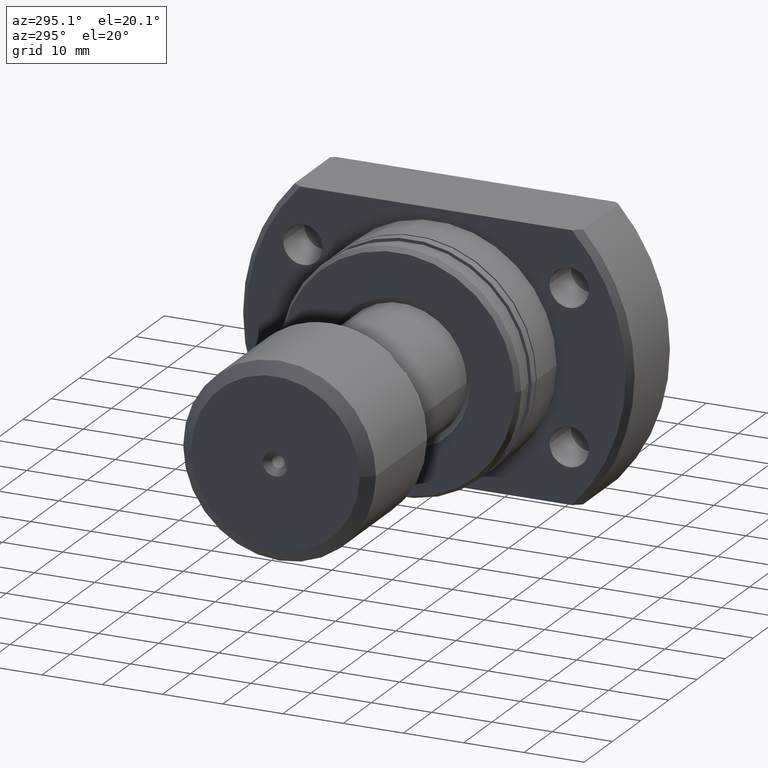
[diagram: clean part render]
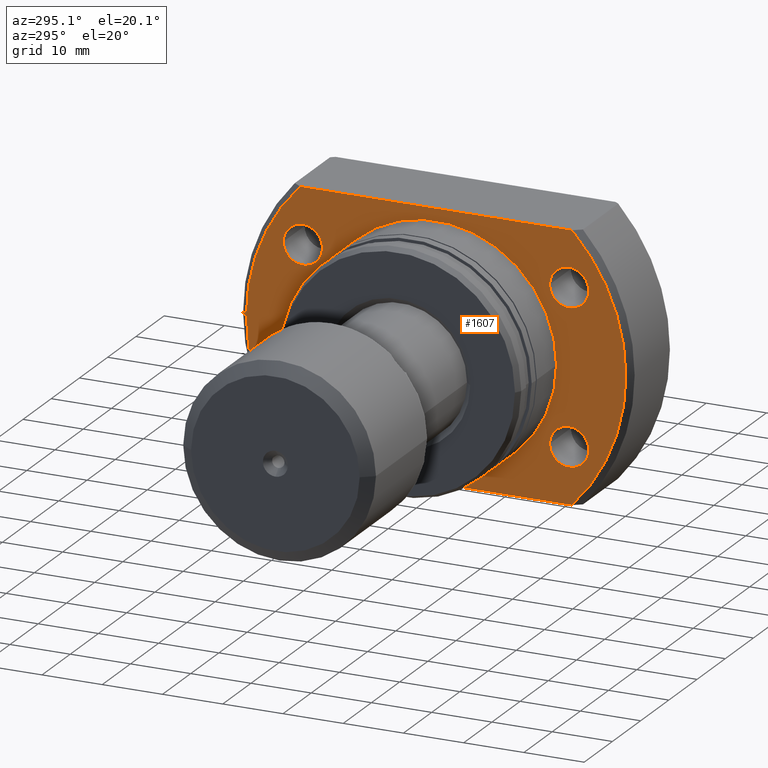
[diagram: same view with one face highlighted and labeled with its STEP entity id]
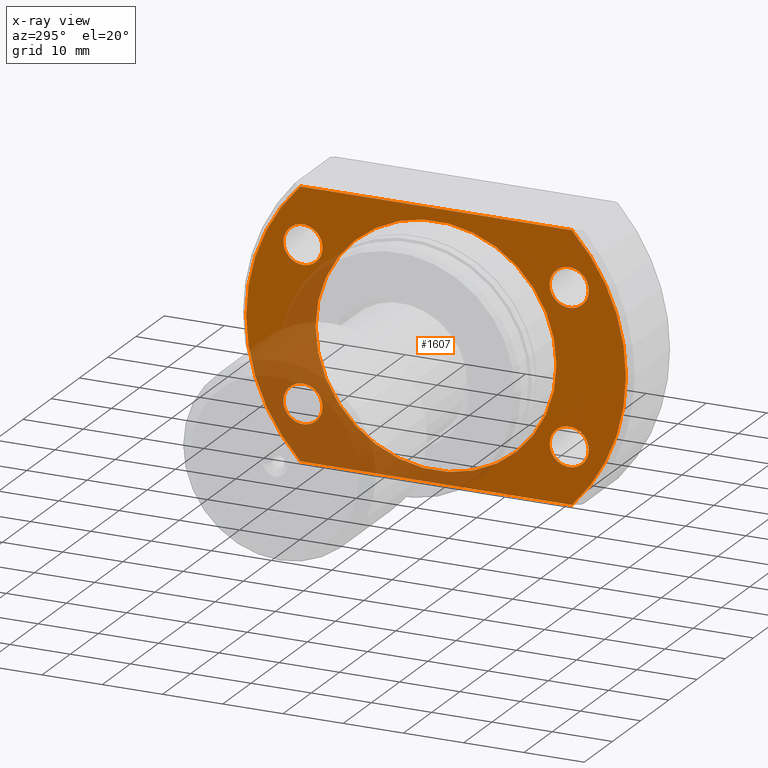
[diagram: x-ray of the same camera — body ghosted, the highlighted face saturated]
A machine part, auxiliary view. The second image highlights one B-rep face of the part: STEP entity #1607.
The next image is the same camera in x-ray: the body ghosted, the highlighted face saturated — about 28% of this face is hidden behind the body in this view.
In plain terms, the highlighted planar face has unit normal (1, 0, 0).
Its self-contained STEP definition (entity closure, byte-faithful):
#59 = ORIENTED_EDGE ( 'NONE', *, *, #588, .T. ) ;
#95 = CARTESIAN_POINT ( 'NONE',  ( 13.50000000000000178, 22.54440063519089676, 22.00000000000000355 ) ) ;
#167 = VERTEX_POINT ( 'NONE', #2412 ) ;
#175 = DIRECTION ( 'NONE',  ( 0.000000000000000000, 1.000000000000000000, 0.000000000000000000 ) ) ;
#193 = VERTEX_POINT ( 'NONE', #1201 ) ;
#196 = AXIS2_PLACEMENT_3D ( 'NONE', #1071, #1055, #1522 ) ;
#211 = DIRECTION ( 'NONE',  ( 1.000000000000000000, 1.335978326342566810E-17, -0.000000000000000000 ) ) ;
#222 = CARTESIAN_POINT ( 'NONE',  ( 13.50000000000000178, 18.84999999999961773, -12.75000000000000178 ) ) ;
#224 = CARTESIAN_POINT ( 'NONE',  ( 13.50000000000000178, 22.09999999999961773, -12.75000000000000178 ) ) ;
#232 = EDGE_CURVE ( 'NONE', #193, #167, #969, .T. ) ;
#262 = CIRCLE ( 'NONE', #2952, 3.249999999999999556 ) ;
#293 = EDGE_CURVE ( 'NONE', #2273, #590, #758, .T. ) ;
#320 = ORIENTED_EDGE ( 'NONE', *, *, #232, .T. ) ;
#322 = EDGE_CURVE ( 'NONE', #1224, #786, #3001, .T. ) ;
#333 = ORIENTED_EDGE ( 'NONE', *, *, #1207, .F. ) ;
#407 = AXIS2_PLACEMENT_3D ( 'NONE', #821, #3035, #1085 ) ;
#423 = DIRECTION ( 'NONE',  ( 1.000000000000000000, 1.335978326342566810E-17, -0.000000000000000000 ) ) ;
#426 = CARTESIAN_POINT ( 'NONE',  ( 13.50000000000000178, 22.54440063519089676, -22.00000000000000355 ) ) ;
#436 = CARTESIAN_POINT ( 'NONE',  ( 13.50000000000000178, -19.99999999999999645, 22.00000000000000355 ) ) ;
#444 = CARTESIAN_POINT ( 'NONE',  ( 13.50000000000001421, -22.54440063519093940, 22.00000000000000355 ) ) ;
#470 = CARTESIAN_POINT ( 'NONE',  ( 13.50000000000000178, -25.35000000000038511, 12.74999999999999822 ) ) ;
#561 = CARTESIAN_POINT ( 'NONE',  ( 13.50000000000000178, -19.99999999999999645, -22.00000000000000355 ) ) ;
#588 = EDGE_CURVE ( 'NONE', #167, #193, #3157, .T. ) ;
#590 = VERTEX_POINT ( 'NONE', #222 ) ;
#623 = EDGE_CURVE ( 'NONE', #1426, #2170, #687, .T. ) ;
#625 = FACE_BOUND ( 'NONE', #1008, .T. ) ;
#672 = FACE_BOUND ( 'NONE', #1849, .T. ) ;
#680 = DIRECTION ( 'NONE',  ( 1.000000000000000000, 1.335978326342566810E-17, -0.000000000000000000 ) ) ;
#687 = LINE ( 'NONE', #436, #2686 ) ;
#708 = DIRECTION ( 'NONE',  ( 0.000000000000000000, 1.000000000000000000, 0.000000000000000000 ) ) ;
#758 = CIRCLE ( 'NONE', #196, 3.249999999999999556 ) ;
#786 = VERTEX_POINT ( 'NONE', #2250 ) ;
#816 = AXIS2_PLACEMENT_3D ( 'NONE', #2223, #211, #2189 ) ;
#820 = CIRCLE ( 'NONE', #1657, 3.249999999999999556 ) ;
#821 = CARTESIAN_POINT ( 'NONE',  ( 13.50000000000000178, 22.09999999999961773, 12.74999999999999822 ) ) ;
#840 = CARTESIAN_POINT ( 'NONE',  ( 13.50000000000000178, 31.49999999999993250, 0.000000000000000000 ) ) ;
#863 = EDGE_CURVE ( 'NONE', #1224, #914, #1490, .T. ) ;
#866 = ORIENTED_EDGE ( 'NONE', *, *, #2694, .T. ) ;
#871 = AXIS2_PLACEMENT_3D ( 'NONE', #1163, #2914, #2200 ) ;
#880 = DIRECTION ( 'NONE',  ( 0.000000000000000000, 1.000000000000000000, 0.000000000000000000 ) ) ;
#898 = DIRECTION ( 'NONE',  ( 1.000000000000000000, 1.335978326342566810E-17, -0.000000000000000000 ) ) ;
#914 = VERTEX_POINT ( 'NONE', #840 ) ;
#924 = CARTESIAN_POINT ( 'NONE',  ( 13.50000000000000178, 1.803570740562465225E-16, 0.000000000000000000 ) ) ;
#958 = CARTESIAN_POINT ( 'NONE',  ( 13.50000000000000178, -18.85000000000038867, 12.74999999999999822 ) ) ;
#969 = CIRCLE ( 'NONE', #816, 19.99999999999999645 ) ;
#1008 = EDGE_LOOP ( 'NONE', ( #59, #320 ) ) ;
#1022 = CARTESIAN_POINT ( 'NONE',  ( 13.50000000000000178, 25.34999999999961418, -12.75000000000000178 ) ) ;
#1032 = AXIS2_PLACEMENT_3D ( 'NONE', #1415, #2403, #3180 ) ;
#1055 = DIRECTION ( 'NONE',  ( 1.000000000000000000, 1.335978326342566810E-17, -0.000000000000000000 ) ) ;
#1069 = ORIENTED_EDGE ( 'NONE', *, *, #2086, .T. ) ;
#1071 = CARTESIAN_POINT ( 'NONE',  ( 13.50000000000000178, 22.09999999999961773, -12.75000000000000178 ) ) ;
#1085 = DIRECTION ( 'NONE',  ( 0.000000000000000000, 1.000000000000000000, 0.000000000000000000 ) ) ;
#1096 = EDGE_CURVE ( 'NONE', #2801, #1821, #2326, .T. ) ;
#1114 = DIRECTION ( 'NONE',  ( 0.000000000000000000, 1.000000000000000000, 0.000000000000000000 ) ) ;
#1163 = CARTESIAN_POINT ( 'NONE',  ( 13.50000000000000355, 1.803570740562465471E-16, 0.000000000000000000 ) ) ;
#1180 = CARTESIAN_POINT ( 'NONE',  ( 13.50000000000000178, 18.84999999999961773, 12.74999999999999822 ) ) ;
#1201 = CARTESIAN_POINT ( 'NONE',  ( 13.50000000000000355, -19.99999999999999645, 2.449293598294706119E-15 ) ) ;
#1207 = EDGE_CURVE ( 'NONE', #2170, #786, #2171, .T. ) ;
#1224 = VERTEX_POINT ( 'NONE', #426 ) ;
#1250 = EDGE_CURVE ( 'NONE', #2136, #1303, #1768, .T. ) ;
#1258 = EDGE_LOOP ( 'NONE', ( #1536, #2038 ) ) ;
#1268 = EDGE_LOOP ( 'NONE', ( #1405, #866 ) ) ;
#1287 = CIRCLE ( 'NONE', #407, 3.249999999999999556 ) ;
#1293 = AXIS2_PLACEMENT_3D ( 'NONE', #2192, #2985, #708 ) ;
#1303 = VERTEX_POINT ( 'NONE', #2954 ) ;
#1359 = DIRECTION ( 'NONE',  ( -1.335978326342566810E-17, 1.000000000000000000, 0.000000000000000000 ) ) ;
#1405 = ORIENTED_EDGE ( 'NONE', *, *, #1943, .T. ) ;
#1415 = CARTESIAN_POINT ( 'NONE',  ( 13.50000000000000178, 1.803570740562465225E-16, 0.000000000000000000 ) ) ;
#1426 = VERTEX_POINT ( 'NONE', #95 ) ;
#1490 = CIRCLE ( 'NONE', #2166, 31.49999999999993250 ) ;
#1522 = DIRECTION ( 'NONE',  ( 0.000000000000000000, 1.000000000000000000, 0.000000000000000000 ) ) ;
#1536 = ORIENTED_EDGE ( 'NONE', *, *, #293, .T. ) ;
#1546 = VECTOR ( 'NONE', #1777, 1000.000000000000000 ) ;
#1580 = DIRECTION ( 'NONE',  ( 0.000000000000000000, 1.000000000000000000, 0.000000000000000000 ) ) ;
#1607 = ADVANCED_FACE ( 'NONE', ( #3136, #672, #2643, #1626, #625, #2879 ), #2609, .F. ) ;
#1609 = AXIS2_PLACEMENT_3D ( 'NONE', #3162, #2149, #2876 ) ;
#1626 = FACE_BOUND ( 'NONE', #1258, .T. ) ;
#1657 = AXIS2_PLACEMENT_3D ( 'NONE', #2091, #680, #2875 ) ;
#1662 = AXIS2_PLACEMENT_3D ( 'NONE', #2157, #1681, #880 ) ;
#1666 = DIRECTION ( 'NONE',  ( 1.000000000000000000, 1.335978326342566810E-17, -0.000000000000000000 ) ) ;
#1675 = EDGE_CURVE ( 'NONE', #1821, #2801, #3207, .T. ) ;
#1678 = CARTESIAN_POINT ( 'NONE',  ( 13.50000000000000178, -19.99999999999999645, 0.000000000000000000 ) ) ;
#1681 = DIRECTION ( 'NONE',  ( 1.000000000000000000, 1.335978326342566810E-17, -0.000000000000000000 ) ) ;
#1728 = DIRECTION ( 'NONE',  ( 1.335978326342566810E-17, -1.000000000000000000, 0.000000000000000000 ) ) ;
#1768 = CIRCLE ( 'NONE', #1662, 3.249999999999999556 ) ;
#1777 = DIRECTION ( 'NONE',  ( 1.335978326342566810E-17, -1.000000000000000000, 0.000000000000000000 ) ) ;
#1790 = ORIENTED_EDGE ( 'NONE', *, *, #623, .F. ) ;
#1821 = VERTEX_POINT ( 'NONE', #470 ) ;
#1842 = DIRECTION ( 'NONE',  ( 1.000000000000000000, 1.335978326342566810E-17, -0.000000000000000000 ) ) ;
#1849 = EDGE_LOOP ( 'NONE', ( #2922, #2231 ) ) ;
#1920 = AXIS2_PLACEMENT_3D ( 'NONE', #2125, #3124, #175 ) ;
#1931 = ORIENTED_EDGE ( 'NONE', *, *, #1250, .T. ) ;
#1943 = EDGE_CURVE ( 'NONE', #2388, #3013, #1287, .T. ) ;
#2033 = ORIENTED_EDGE ( 'NONE', *, *, #863, .F. ) ;
#2038 = ORIENTED_EDGE ( 'NONE', *, *, #3179, .T. ) ;
#2064 = AXIS2_PLACEMENT_3D ( 'NONE', #1678, #423, #1359 ) ;
#2086 = EDGE_CURVE ( 'NONE', #1303, #2136, #820, .T. ) ;
#2091 = CARTESIAN_POINT ( 'NONE',  ( 13.50000000000000178, -22.10000000000038511, -12.75000000000000178 ) ) ;
#2103 = EDGE_LOOP ( 'NONE', ( #1790, #2978, #2033, #2591, #333 ) ) ;
#2125 = CARTESIAN_POINT ( 'NONE',  ( 13.50000000000000178, -22.10000000000038511, 12.74999999999999822 ) ) ;
#2136 = VERTEX_POINT ( 'NONE', #2683 ) ;
#2149 = DIRECTION ( 'NONE',  ( 1.000000000000000000, 1.335978326342566810E-17, -0.000000000000000000 ) ) ;
#2157 = CARTESIAN_POINT ( 'NONE',  ( 13.50000000000000178, -22.10000000000038511, -12.75000000000000178 ) ) ;
#2166 = AXIS2_PLACEMENT_3D ( 'NONE', #2327, #898, #1114 ) ;
#2170 = VERTEX_POINT ( 'NONE', #444 ) ;
#2171 = CIRCLE ( 'NONE', #2796, 31.49999999999993250 ) ;
#2182 = EDGE_CURVE ( 'NONE', #914, #1426, #2376, .T. ) ;
#2189 = DIRECTION ( 'NONE',  ( 0.000000000000000000, 1.000000000000000000, 0.000000000000000000 ) ) ;
#2192 = CARTESIAN_POINT ( 'NONE',  ( 13.50000000000000178, 22.09999999999961773, 12.74999999999999822 ) ) ;
#2200 = DIRECTION ( 'NONE',  ( 0.000000000000000000, 1.000000000000000000, 0.000000000000000000 ) ) ;
#2223 = CARTESIAN_POINT ( 'NONE',  ( 13.50000000000000355, 1.803570740562465471E-16, 0.000000000000000000 ) ) ;
#2231 = ORIENTED_EDGE ( 'NONE', *, *, #1675, .T. ) ;
#2250 = CARTESIAN_POINT ( 'NONE',  ( 13.50000000000001421, -22.54440063519093940, -22.00000000000000355 ) ) ;
#2273 = VERTEX_POINT ( 'NONE', #1022 ) ;
#2320 = CARTESIAN_POINT ( 'NONE',  ( 13.50000000000000178, 25.34999999999961418, 12.74999999999999822 ) ) ;
#2326 = CIRCLE ( 'NONE', #1609, 3.249999999999999556 ) ;
#2327 = CARTESIAN_POINT ( 'NONE',  ( 13.50000000000000178, 1.803570740562465225E-16, 0.000000000000000000 ) ) ;
#2376 = CIRCLE ( 'NONE', #1032, 31.49999999999993250 ) ;
#2388 = VERTEX_POINT ( 'NONE', #2320 ) ;
#2403 = DIRECTION ( 'NONE',  ( 1.000000000000000000, 1.335978326342566810E-17, -0.000000000000000000 ) ) ;
#2412 = CARTESIAN_POINT ( 'NONE',  ( 13.50000000000000355, 19.99999999999999645, 0.000000000000000000 ) ) ;
#2591 = ORIENTED_EDGE ( 'NONE', *, *, #322, .T. ) ;
#2609 = PLANE ( 'NONE',  #2064 ) ;
#2643 = FACE_BOUND ( 'NONE', #3155, .T. ) ;
#2648 = DIRECTION ( 'NONE',  ( 0.000000000000000000, 1.000000000000000000, 0.000000000000000000 ) ) ;
#2683 = CARTESIAN_POINT ( 'NONE',  ( 13.50000000000000178, -25.35000000000038511, -12.75000000000000178 ) ) ;
#2686 = VECTOR ( 'NONE', #1728, 1000.000000000000000 ) ;
#2694 = EDGE_CURVE ( 'NONE', #3013, #2388, #3114, .T. ) ;
#2796 = AXIS2_PLACEMENT_3D ( 'NONE', #924, #1666, #2648 ) ;
#2801 = VERTEX_POINT ( 'NONE', #958 ) ;
#2875 = DIRECTION ( 'NONE',  ( 0.000000000000000000, 1.000000000000000000, 0.000000000000000000 ) ) ;
#2876 = DIRECTION ( 'NONE',  ( 0.000000000000000000, 1.000000000000000000, 0.000000000000000000 ) ) ;
#2879 = FACE_OUTER_BOUND ( 'NONE', #2103, .T. ) ;
#2914 = DIRECTION ( 'NONE',  ( 1.000000000000000000, 1.335978326342566810E-17, -0.000000000000000000 ) ) ;
#2922 = ORIENTED_EDGE ( 'NONE', *, *, #1096, .T. ) ;
#2952 = AXIS2_PLACEMENT_3D ( 'NONE', #224, #1842, #1580 ) ;
#2954 = CARTESIAN_POINT ( 'NONE',  ( 13.50000000000000178, -18.85000000000038867, -12.75000000000000178 ) ) ;
#2978 = ORIENTED_EDGE ( 'NONE', *, *, #2182, .F. ) ;
#2985 = DIRECTION ( 'NONE',  ( 1.000000000000000000, 1.335978326342566810E-17, -0.000000000000000000 ) ) ;
#3001 = LINE ( 'NONE', #561, #1546 ) ;
#3013 = VERTEX_POINT ( 'NONE', #1180 ) ;
#3035 = DIRECTION ( 'NONE',  ( 1.000000000000000000, 1.335978326342566810E-17, -0.000000000000000000 ) ) ;
#3114 = CIRCLE ( 'NONE', #1293, 3.249999999999999556 ) ;
#3124 = DIRECTION ( 'NONE',  ( 1.000000000000000000, 1.335978326342566810E-17, -0.000000000000000000 ) ) ;
#3136 = FACE_BOUND ( 'NONE', #1268, .T. ) ;
#3155 = EDGE_LOOP ( 'NONE', ( #1069, #1931 ) ) ;
#3157 = CIRCLE ( 'NONE', #871, 19.99999999999999645 ) ;
#3162 = CARTESIAN_POINT ( 'NONE',  ( 13.50000000000000178, -22.10000000000038511, 12.74999999999999822 ) ) ;
#3179 = EDGE_CURVE ( 'NONE', #590, #2273, #262, .T. ) ;
#3180 = DIRECTION ( 'NONE',  ( 0.000000000000000000, 1.000000000000000000, 0.000000000000000000 ) ) ;
#3207 = CIRCLE ( 'NONE', #1920, 3.249999999999999556 ) ;